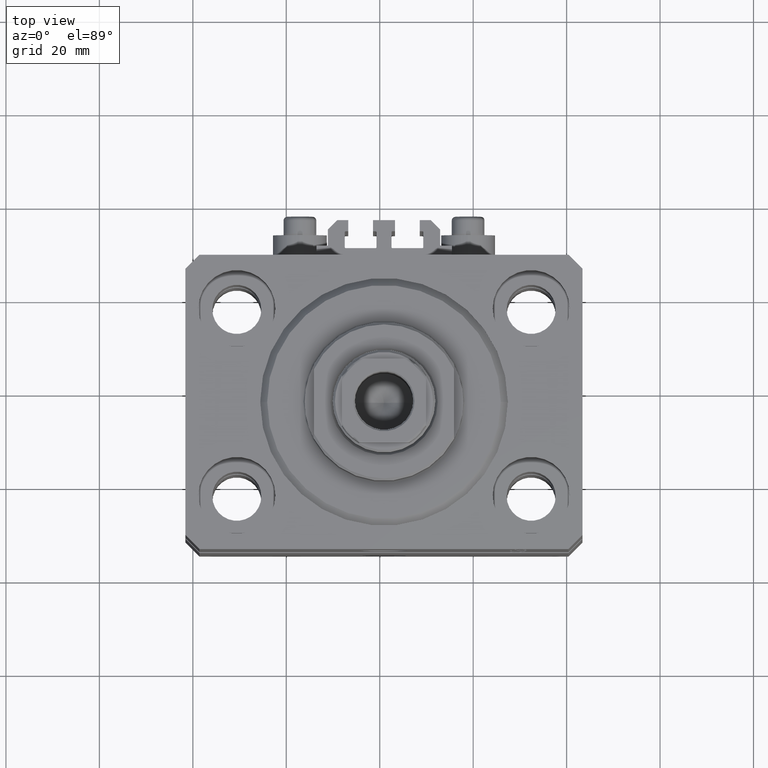
[diagram: clean part render]
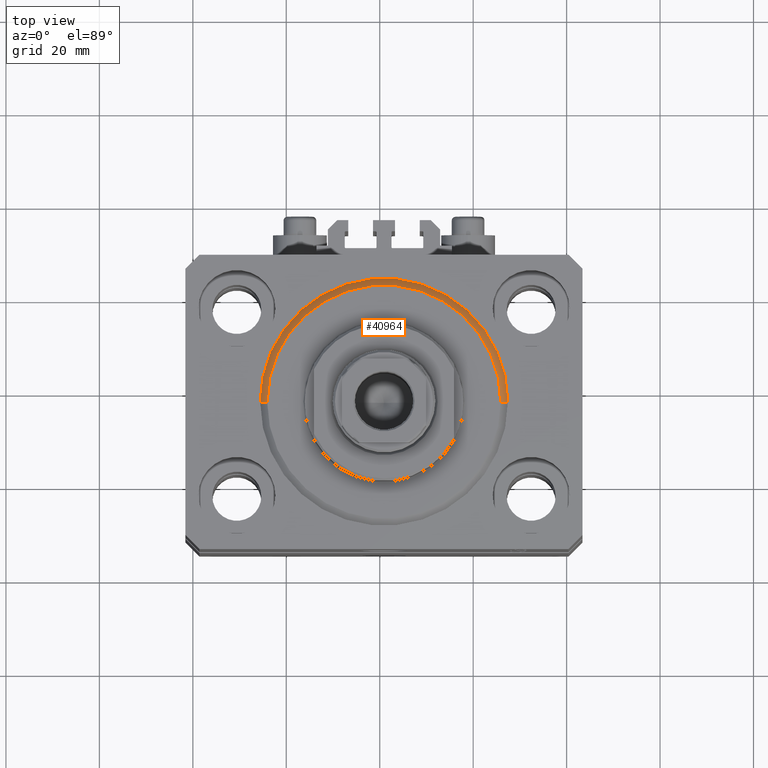
[diagram: same view with one face highlighted and labeled with its STEP entity id]
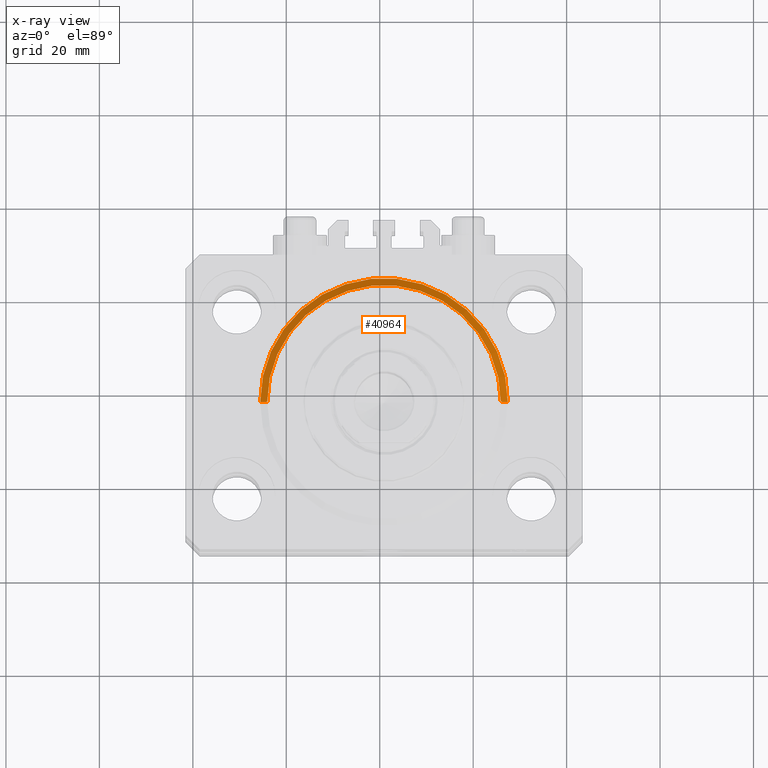
[diagram: x-ray of the same camera — body ghosted, the highlighted face saturated]
A machine part, top view. The second image highlights one B-rep face of the part: STEP entity #40964.
The next image is the same camera in x-ray: the body ghosted, the highlighted face saturated — about 0% of this face is hidden behind the body in this view.
In plain terms, the highlighted conical surface has half-angle 45 deg.
Its self-contained STEP definition (entity closure, byte-faithful):
#8 = VERTEX_POINT ( 'NONE', #47241 ) ;
#716 = DIRECTION ( 'NONE',  ( 1.000000000000000000, 0.000000000000000000, 0.000000000000000000 ) ) ;
#4113 = DIRECTION ( 'NONE',  ( 1.000000000000000000, 0.000000000000000000, 0.000000000000000000 ) ) ;
#4125 = VERTEX_POINT ( 'NONE', #18102 ) ;
#7023 = EDGE_CURVE ( 'NONE', #45691, #8, #26752, .T. ) ;
#7514 = DIRECTION ( 'NONE',  ( 0.7071067811865483499, 0.000000000000000000, 0.7071067811865466846 ) ) ;
#8042 = EDGE_CURVE ( 'NONE', #8126, #4125, #22720, .T. ) ;
#8126 = VERTEX_POINT ( 'NONE', #45112 ) ;
#8278 = CARTESIAN_POINT ( 'NONE',  ( -26.50000000000000355, 3.245314017740486554E-15, 1.500000000000018652 ) ) ;
#10126 = EDGE_LOOP ( 'NONE', ( #10371, #47583, #15448, #35109 ) ) ;
#10371 = ORIENTED_EDGE ( 'NONE', *, *, #40212, .F. ) ;
#11313 = DIRECTION ( 'NONE',  ( -0.000000000000000000, -0.000000000000000000, 1.000000000000000000 ) ) ;
#15448 = ORIENTED_EDGE ( 'NONE', *, *, #27184, .F. ) ;
#18102 = CARTESIAN_POINT ( 'NONE',  ( -26.50000000000000355, 0.000000000000000000, 1.500000000000018652 ) ) ;
#19491 = CARTESIAN_POINT ( 'NONE',  ( 0.000000000000000000, 0.000000000000000000, 0.000000000000000000 ) ) ;
#22382 = CARTESIAN_POINT ( 'NONE',  ( 0.000000000000000000, 0.000000000000000000, 1.500000000000018652 ) ) ;
#22429 = CARTESIAN_POINT ( 'NONE',  ( 26.50000000000000355, 0.000000000000000000, 1.500000000000018652 ) ) ;
#22720 = LINE ( 'NONE', #8278, #41326 ) ;
#22842 = CONICAL_SURFACE ( 'NONE', #36722, 26.50000000000000355, 0.7853981633974495002 ) ;
#26752 = LINE ( 'NONE', #22429, #29789 ) ;
#27184 = EDGE_CURVE ( 'NONE', #8, #4125, #43291, .T. ) ;
#27906 = CARTESIAN_POINT ( 'NONE',  ( 0.000000000000000000, 0.000000000000000000, 1.500000000000018652 ) ) ;
#28982 = CIRCLE ( 'NONE', #38986, 24.99999999999998224 ) ;
#29789 = VECTOR ( 'NONE', #7514, 1000.000000000000000 ) ;
#34044 = AXIS2_PLACEMENT_3D ( 'NONE', #27906, #42585, #43063 ) ;
#34185 = DIRECTION ( 'NONE',  ( -0.000000000000000000, -0.000000000000000000, -1.000000000000000000 ) ) ;
#35109 = ORIENTED_EDGE ( 'NONE', *, *, #7023, .F. ) ;
#36722 = AXIS2_PLACEMENT_3D ( 'NONE', #22382, #11313, #716 ) ;
#36798 = CARTESIAN_POINT ( 'NONE',  ( 24.99999999999998224, 0.000000000000000000, 0.000000000000000000 ) ) ;
#38986 = AXIS2_PLACEMENT_3D ( 'NONE', #19491, #34185, #4113 ) ;
#40212 = EDGE_CURVE ( 'NONE', #8126, #45691, #28982, .T. ) ;
#40964 = ADVANCED_FACE ( 'NONE', ( #44057 ), #22842, .T. ) ;
#41326 = VECTOR ( 'NONE', #43940, 1000.000000000000000 ) ;
#42585 = DIRECTION ( 'NONE',  ( -0.000000000000000000, -0.000000000000000000, 1.000000000000000000 ) ) ;
#43063 = DIRECTION ( 'NONE',  ( 1.000000000000000000, 0.000000000000000000, 0.000000000000000000 ) ) ;
#43291 = CIRCLE ( 'NONE', #34044, 26.50000000000000355 ) ;
#43940 = DIRECTION ( 'NONE',  ( -0.7071067811865483499, 8.659560562354942719E-17, 0.7071067811865466846 ) ) ;
#44057 = FACE_OUTER_BOUND ( 'NONE', #10126, .T. ) ;
#45112 = CARTESIAN_POINT ( 'NONE',  ( -24.99999999999998224, 3.153465507804433615E-15, 0.000000000000000000 ) ) ;
#45691 = VERTEX_POINT ( 'NONE', #36798 ) ;
#47241 = CARTESIAN_POINT ( 'NONE',  ( 26.50000000000000355, 3.245314017740486554E-15, 1.500000000000018652 ) ) ;
#47583 = ORIENTED_EDGE ( 'NONE', *, *, #8042, .T. ) ;